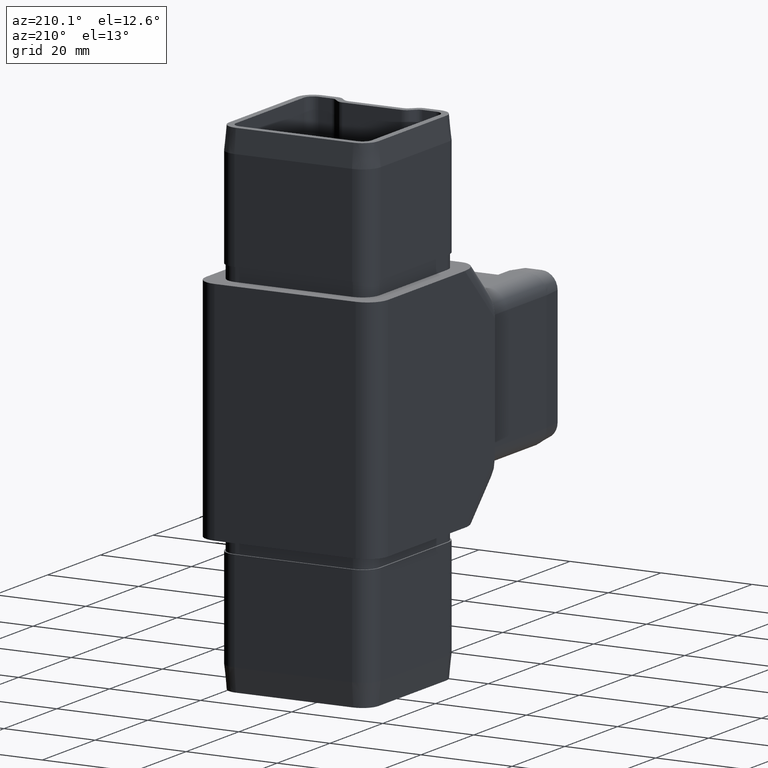
[diagram: clean part render]
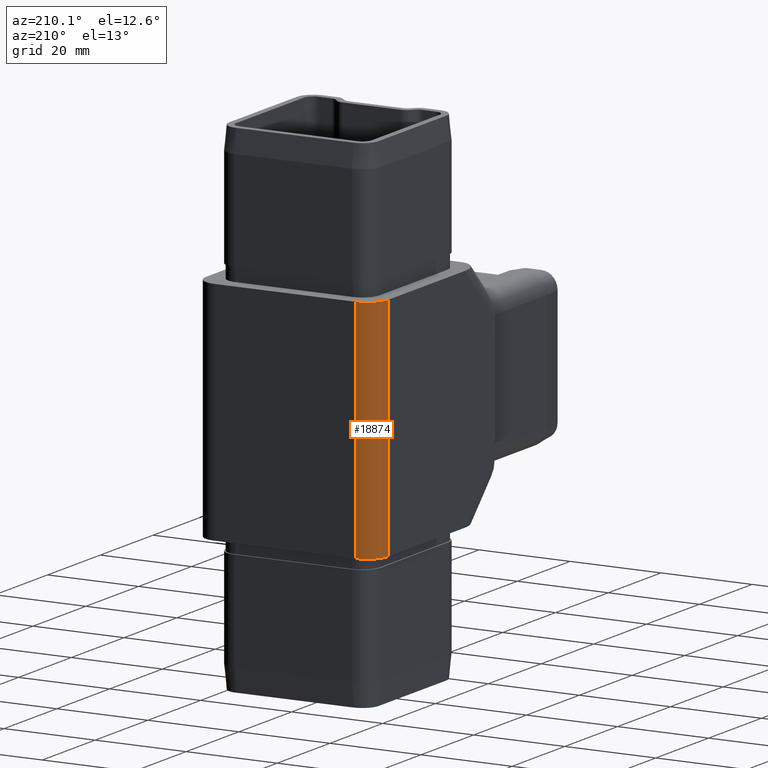
[diagram: same view with one face highlighted and labeled with its STEP entity id]
A machine part, auxiliary view. The second image highlights one B-rep face of the part: STEP entity #18874.
In plain terms, the highlighted cylindrical surface (edge-blend (fillet) strip) has radius 4.5 mm, axis along (0, 0, -1).
Its self-contained STEP definition (entity closure, byte-faithful):
#661 = DIRECTION ( 'NONE',  ( -1.000000000000000000, 0.0000000000000000000, 0.0000000000000000000 ) ) ;
#1138 = DIRECTION ( 'NONE',  ( 0.0000000000000000000, 0.0000000000000000000, -1.000000000000000000 ) ) ;
#1710 = DIRECTION ( 'NONE',  ( 1.000000000000000000, 0.0000000000000000000, 0.0000000000000000000 ) ) ;
#3890 = DIRECTION ( 'NONE',  ( 1.000000000000000000, 0.0000000000000000000, 0.0000000000000000000 ) ) ;
#3894 = LINE ( 'NONE', #5915, #5627 ) ;
#5162 = CIRCLE ( 'NONE', #5273, 4.499999999999999100 ) ;
#5273 = AXIS2_PLACEMENT_3D ( 'NONE', #11246, #6518, #1710 ) ;
#5394 = CARTESIAN_POINT ( 'NONE',  ( -15.50000000000000500, 18.00000000000000000, 25.00000000000000000 ) ) ;
#5450 = AXIS2_PLACEMENT_3D ( 'NONE', #16528, #13334, #3890 ) ;
#5469 = VECTOR ( 'NONE', #1138, 1000.000000000000000 ) ;
#5627 = VECTOR ( 'NONE', #10932, 1000.000000000000000 ) ;
#5727 = EDGE_CURVE ( 'NONE', #13678, #16542, #14146, .T. ) ;
#5915 = CARTESIAN_POINT ( 'NONE',  ( -15.50000000000000500, 22.50000000000000000, 25.00000000000000000 ) ) ;
#6518 = DIRECTION ( 'NONE',  ( 0.0000000000000000000, -0.0000000000000000000, -1.000000000000000000 ) ) ;
#6994 = ORIENTED_EDGE ( 'NONE', *, *, #5727, .F. ) ;
#7083 = DIRECTION ( 'NONE',  ( 0.0000000000000000000, 0.0000000000000000000, -1.000000000000000000 ) ) ;
#7355 = CIRCLE ( 'NONE', #5450, 4.499999999999999100 ) ;
#8401 = EDGE_LOOP ( 'NONE', ( #11858, #8844, #17972, #6994 ) ) ;
#8844 = ORIENTED_EDGE ( 'NONE', *, *, #15013, .F. ) ;
#10294 = EDGE_CURVE ( 'NONE', #16983, #13678, #7355, .T. ) ;
#10932 = DIRECTION ( 'NONE',  ( -0.0000000000000000000, -0.0000000000000000000, 1.000000000000000000 ) ) ;
#11246 = CARTESIAN_POINT ( 'NONE',  ( -15.50000000000000500, 18.00000000000000000, -25.00000000000000000 ) ) ;
#11324 = CARTESIAN_POINT ( 'NONE',  ( -15.50000000000000500, 22.50000000000000000, 25.00000000000000000 ) ) ;
#11858 = ORIENTED_EDGE ( 'NONE', *, *, #10294, .F. ) ;
#12984 = CARTESIAN_POINT ( 'NONE',  ( -15.50000000000000500, 22.50000000000000000, -25.00000000000000000 ) ) ;
#13197 = CARTESIAN_POINT ( 'NONE',  ( -20.00000000000000400, 18.00000000000000400, -25.00000000000000000 ) ) ;
#13334 = DIRECTION ( 'NONE',  ( -0.0000000000000000000, 0.0000000000000000000, 1.000000000000000000 ) ) ;
#13678 = VERTEX_POINT ( 'NONE', #19259 ) ;
#13841 = CYLINDRICAL_SURFACE ( 'NONE', #16300, 4.499999999999999100 ) ;
#14146 = LINE ( 'NONE', #16972, #5469 ) ;
#15013 = EDGE_CURVE ( 'NONE', #16329, #16983, #3894, .T. ) ;
#16300 = AXIS2_PLACEMENT_3D ( 'NONE', #5394, #7083, #661 ) ;
#16329 = VERTEX_POINT ( 'NONE', #12984 ) ;
#16528 = CARTESIAN_POINT ( 'NONE',  ( -15.50000000000000500, 18.00000000000000000, 25.00000000000000000 ) ) ;
#16542 = VERTEX_POINT ( 'NONE', #13197 ) ;
#16972 = CARTESIAN_POINT ( 'NONE',  ( -20.00000000000000400, 18.00000000000000000, 25.00000000000000000 ) ) ;
#16983 = VERTEX_POINT ( 'NONE', #11324 ) ;
#17377 = FACE_OUTER_BOUND ( 'NONE', #8401, .T. ) ;
#17972 = ORIENTED_EDGE ( 'NONE', *, *, #19205, .F. ) ;
#18874 = ADVANCED_FACE ( 'NONE', ( #17377 ), #13841, .T. ) ;
#19205 = EDGE_CURVE ( 'NONE', #16542, #16329, #5162, .T. ) ;
#19259 = CARTESIAN_POINT ( 'NONE',  ( -20.00000000000000400, 18.00000000000000400, 25.00000000000000000 ) ) ;